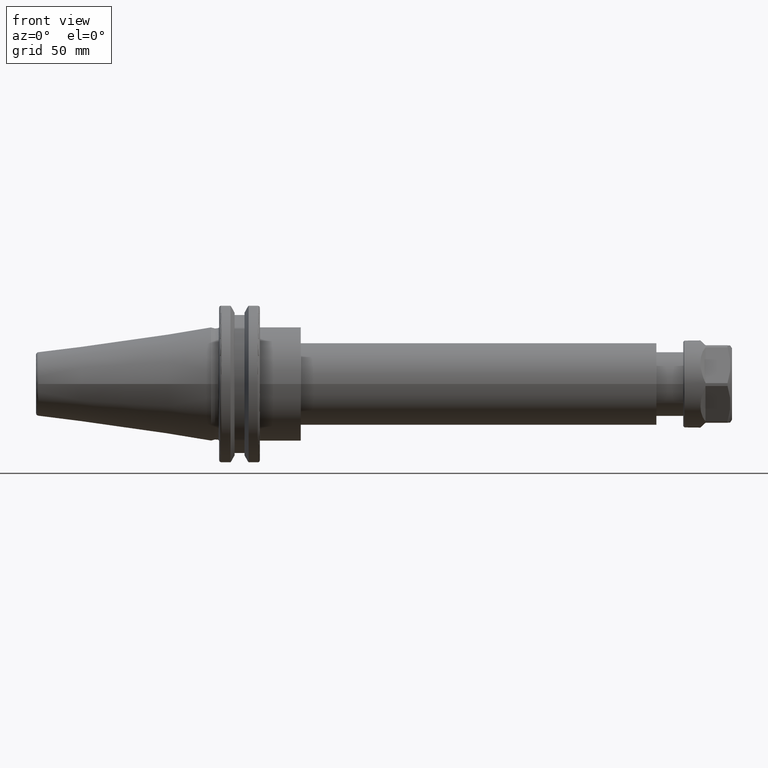
[diagram: clean part render]
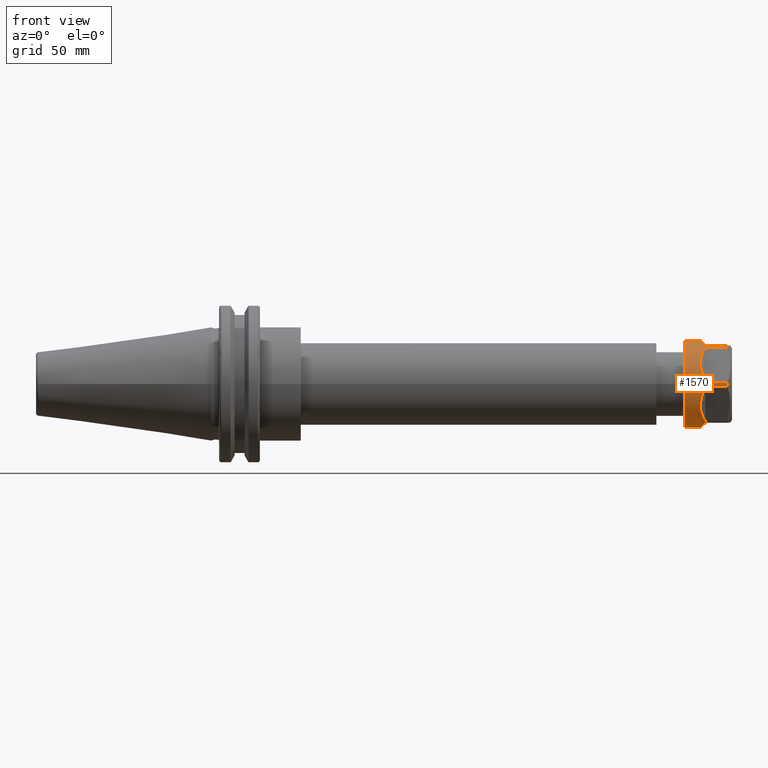
[diagram: same view with one face highlighted and labeled with its STEP entity id]
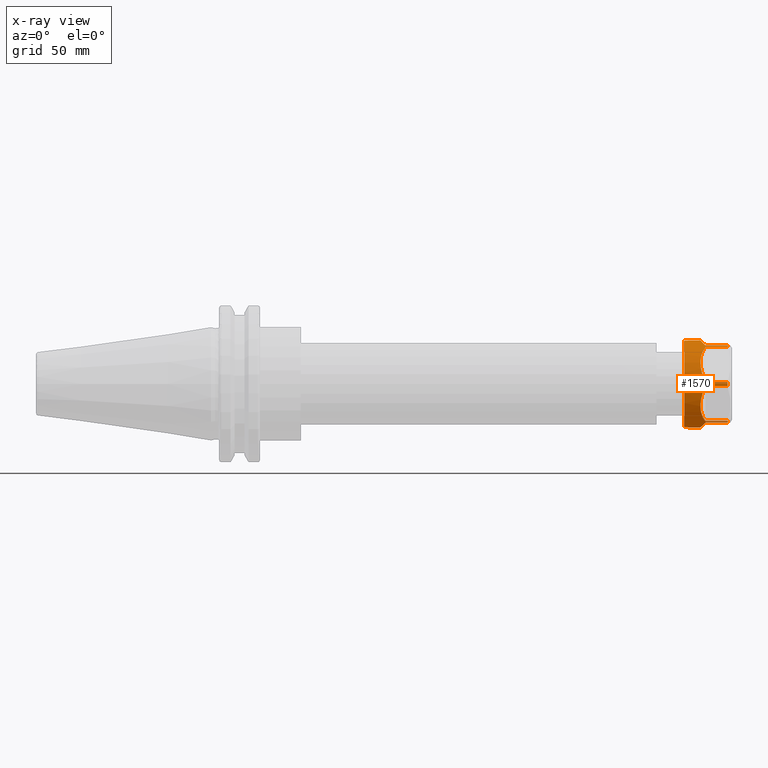
[diagram: x-ray of the same camera — body ghosted, the highlighted face saturated]
A machine part, front view. The second image highlights one B-rep face of the part: STEP entity #1570.
The next image is the same camera in x-ray: the body ghosted, the highlighted face saturated — about 2% of this face is hidden behind the body in this view.
In plain terms, the highlighted cylindrical surface (bore or boss wall) has radius 17 mm, axis along (1, 0, 0).
Its self-contained STEP definition (entity closure, byte-faithful):
#23=ELLIPSE('',#1792,24.0416305603426,17.);
#24=ELLIPSE('',#1794,24.0416305603437,17.);
#25=ELLIPSE('',#1796,24.0416305603437,17.);
#26=ELLIPSE('',#1798,24.0416305603426,17.);
#27=ELLIPSE('',#1799,24.0416305603426,17.);
#28=ELLIPSE('',#1801,24.0416305603437,17.);
#29=ELLIPSE('',#1803,24.0416305603437,17.);
#257=FACE_OUTER_BOUND('',#359,.T.);
#359=EDGE_LOOP('',(#1354,#1355,#1356,#1357,#1358,#1359,#1360,#1361,#1362,
#1363,#1364,#1365,#1366,#1367,#1368,#1369,#1370,#1371,#1372,#1373,#1374,
#1375,#1376,#1377,#1378,#1379,#1380,#1381));
#466=LINE('',#2776,#566);
#467=LINE('',#2780,#567);
#468=LINE('',#2784,#568);
#469=LINE('',#2788,#569);
#470=LINE('',#2792,#570);
#471=LINE('',#2796,#571);
#472=LINE('',#2799,#572);
#473=LINE('',#2803,#573);
#474=LINE('',#2807,#574);
#475=LINE('',#2811,#575);
#476=LINE('',#2815,#576);
#477=LINE('',#2819,#577);
#478=LINE('',#2822,#578);
#566=VECTOR('',#2169,8.567949192431);
#567=VECTOR('',#2172,8.567949192431);
#568=VECTOR('',#2175,8.567949192431);
#569=VECTOR('',#2178,8.567949192431);
#570=VECTOR('',#2181,8.567949192431);
#571=VECTOR('',#2184,8.567949192431);
#572=VECTOR('',#2187,17.);
#573=VECTOR('',#2190,8.567949192431);
#574=VECTOR('',#2193,8.567949192431);
#575=VECTOR('',#2196,8.567949192431);
#576=VECTOR('',#2199,8.567949192431);
#577=VECTOR('',#2202,8.567949192431);
#578=VECTOR('',#2205,8.567949192431);
#645=CIRCLE('',#1790,17.);
#646=CIRCLE('',#1793,17.);
#647=CIRCLE('',#1795,17.);
#648=CIRCLE('',#1797,17.);
#649=CIRCLE('',#1800,17.);
#650=CIRCLE('',#1802,17.);
#651=CIRCLE('',#1804,17.);
#773=VERTEX_POINT('',#2768);
#774=VERTEX_POINT('',#2772);
#775=VERTEX_POINT('',#2773);
#776=VERTEX_POINT('',#2775);
#777=VERTEX_POINT('',#2777);
#778=VERTEX_POINT('',#2779);
#779=VERTEX_POINT('',#2781);
#780=VERTEX_POINT('',#2783);
#781=VERTEX_POINT('',#2785);
#782=VERTEX_POINT('',#2787);
#783=VERTEX_POINT('',#2789);
#784=VERTEX_POINT('',#2791);
#785=VERTEX_POINT('',#2793);
#786=VERTEX_POINT('',#2795);
#787=VERTEX_POINT('',#2797);
#788=VERTEX_POINT('',#2800);
#789=VERTEX_POINT('',#2802);
#790=VERTEX_POINT('',#2804);
#791=VERTEX_POINT('',#2806);
#792=VERTEX_POINT('',#2808);
#793=VERTEX_POINT('',#2810);
#794=VERTEX_POINT('',#2812);
#795=VERTEX_POINT('',#2814);
#796=VERTEX_POINT('',#2816);
#797=VERTEX_POINT('',#2818);
#798=VERTEX_POINT('',#2820);
#973=EDGE_CURVE('',#773,#773,#645,.T.);
#975=EDGE_CURVE('',#774,#775,#23,.T.);
#976=EDGE_CURVE('',#774,#776,#466,.T.);
#977=EDGE_CURVE('',#777,#776,#646,.T.);
#978=EDGE_CURVE('',#778,#777,#467,.T.);
#979=EDGE_CURVE('',#779,#778,#24,.T.);
#980=EDGE_CURVE('',#779,#780,#468,.T.);
#981=EDGE_CURVE('',#781,#780,#647,.T.);
#982=EDGE_CURVE('',#782,#781,#469,.T.);
#983=EDGE_CURVE('',#783,#782,#25,.T.);
#984=EDGE_CURVE('',#783,#784,#470,.T.);
#985=EDGE_CURVE('',#785,#784,#648,.T.);
#986=EDGE_CURVE('',#786,#785,#471,.T.);
#987=EDGE_CURVE('',#787,#786,#26,.T.);
#988=EDGE_CURVE('',#787,#773,#472,.T.);
#989=EDGE_CURVE('',#788,#787,#27,.T.);
#990=EDGE_CURVE('',#788,#789,#473,.T.);
#991=EDGE_CURVE('',#790,#789,#649,.T.);
#992=EDGE_CURVE('',#791,#790,#474,.T.);
#993=EDGE_CURVE('',#792,#791,#28,.T.);
#994=EDGE_CURVE('',#792,#793,#475,.T.);
#995=EDGE_CURVE('',#794,#793,#650,.T.);
#996=EDGE_CURVE('',#795,#794,#476,.T.);
#997=EDGE_CURVE('',#796,#795,#29,.T.);
#998=EDGE_CURVE('',#796,#797,#477,.T.);
#999=EDGE_CURVE('',#798,#797,#651,.T.);
#1000=EDGE_CURVE('',#775,#798,#478,.T.);
#1354=ORIENTED_EDGE('',*,*,#975,.F.);
#1355=ORIENTED_EDGE('',*,*,#976,.T.);
#1356=ORIENTED_EDGE('',*,*,#977,.F.);
#1357=ORIENTED_EDGE('',*,*,#978,.F.);
#1358=ORIENTED_EDGE('',*,*,#979,.F.);
#1359=ORIENTED_EDGE('',*,*,#980,.T.);
#1360=ORIENTED_EDGE('',*,*,#981,.F.);
#1361=ORIENTED_EDGE('',*,*,#982,.F.);
#1362=ORIENTED_EDGE('',*,*,#983,.F.);
#1363=ORIENTED_EDGE('',*,*,#984,.T.);
#1364=ORIENTED_EDGE('',*,*,#985,.F.);
#1365=ORIENTED_EDGE('',*,*,#986,.F.);
#1366=ORIENTED_EDGE('',*,*,#987,.F.);
#1367=ORIENTED_EDGE('',*,*,#988,.T.);
#1368=ORIENTED_EDGE('',*,*,#973,.F.);
#1369=ORIENTED_EDGE('',*,*,#988,.F.);
#1370=ORIENTED_EDGE('',*,*,#989,.F.);
#1371=ORIENTED_EDGE('',*,*,#990,.T.);
#1372=ORIENTED_EDGE('',*,*,#991,.F.);
#1373=ORIENTED_EDGE('',*,*,#992,.F.);
#1374=ORIENTED_EDGE('',*,*,#993,.F.);
#1375=ORIENTED_EDGE('',*,*,#994,.T.);
#1376=ORIENTED_EDGE('',*,*,#995,.F.);
#1377=ORIENTED_EDGE('',*,*,#996,.F.);
#1378=ORIENTED_EDGE('',*,*,#997,.F.);
#1379=ORIENTED_EDGE('',*,*,#998,.T.);
#1380=ORIENTED_EDGE('',*,*,#999,.F.);
#1381=ORIENTED_EDGE('',*,*,#1000,.F.);
#1499=CYLINDRICAL_SURFACE('',#1791,17.);
#1570=ADVANCED_FACE('',(#257),#1499,.T.);
#1790=AXIS2_PLACEMENT_3D('',#2769,#2162,#2163);
#1791=AXIS2_PLACEMENT_3D('',#2771,#2165,#2166);
#1792=AXIS2_PLACEMENT_3D('',#2774,#2167,#2168);
#1793=AXIS2_PLACEMENT_3D('',#2778,#2170,#2171);
#1794=AXIS2_PLACEMENT_3D('',#2782,#2173,#2174);
#1795=AXIS2_PLACEMENT_3D('',#2786,#2176,#2177);
#1796=AXIS2_PLACEMENT_3D('',#2790,#2179,#2180);
#1797=AXIS2_PLACEMENT_3D('',#2794,#2182,#2183);
#1798=AXIS2_PLACEMENT_3D('',#2798,#2185,#2186);
#1799=AXIS2_PLACEMENT_3D('',#2801,#2188,#2189);
#1800=AXIS2_PLACEMENT_3D('',#2805,#2191,#2192);
#1801=AXIS2_PLACEMENT_3D('',#2809,#2194,#2195);
#1802=AXIS2_PLACEMENT_3D('',#2813,#2197,#2198);
#1803=AXIS2_PLACEMENT_3D('',#2817,#2200,#2201);
#1804=AXIS2_PLACEMENT_3D('',#2821,#2203,#2204);
#2162=DIRECTION('center_axis',(-1.,0.,0.));
#2163=DIRECTION('ref_axis',(0.,0.,-1.));
#2165=DIRECTION('center_axis',(1.,0.,0.));
#2166=DIRECTION('ref_axis',(0.,0.,-1.));
#2167=DIRECTION('center_axis',(0.707106781186548,0.,-0.707106781186548));
#2168=DIRECTION('ref_axis',(-0.707106781186548,0.,-0.707106781186547));
#2169=DIRECTION('',(1.,0.,0.));
#2170=DIRECTION('center_axis',(1.,0.,0.));
#2171=DIRECTION('ref_axis',(0.,-0.528845944515708,-0.848717837075013));
#2172=DIRECTION('',(1.,0.,0.));
#2173=DIRECTION('center_axis',(0.707106781186515,-0.612372435695813,-0.353553390593307));
#2174=DIRECTION('ref_axis',(-0.70710678118658,-0.612372435695756,-0.353553390593275));
#2175=DIRECTION('',(1.,0.,0.));
#2176=DIRECTION('center_axis',(1.,0.,0.));
#2177=DIRECTION('ref_axis',(0.,-0.999434179809799,0.03363510410144));
#2178=DIRECTION('',(1.,0.,0.));
#2179=DIRECTION('center_axis',(0.707106781186515,-0.612372435695813,0.353553390593307));
#2180=DIRECTION('ref_axis',(0.70710678118658,0.612372435695756,-0.353553390593275));
#2181=DIRECTION('',(1.,0.,0.));
#2182=DIRECTION('center_axis',(1.,0.,0.));
#2183=DIRECTION('ref_axis',(0.,-0.470588235294092,0.882352941176485));
#2184=DIRECTION('',(1.,0.,0.));
#2185=DIRECTION('center_axis',(0.707106781186548,0.,0.707106781186548));
#2186=DIRECTION('ref_axis',(0.707106781186548,0.,-0.707106781186547));
#2187=DIRECTION('',(-1.,0.,0.));
#2188=DIRECTION('center_axis',(0.707106781186548,0.,0.707106781186548));
#2189=DIRECTION('ref_axis',(0.707106781186548,0.,-0.707106781186547));
#2190=DIRECTION('',(1.,0.,0.));
#2191=DIRECTION('center_axis',(1.,0.,0.));
#2192=DIRECTION('ref_axis',(0.,0.528845944515708,0.848717837075013));
#2193=DIRECTION('',(1.,0.,0.));
#2194=DIRECTION('center_axis',(0.707106781186515,0.612372435695813,0.353553390593307));
#2195=DIRECTION('ref_axis',(0.70710678118658,-0.612372435695756,-0.353553390593275));
#2196=DIRECTION('',(1.,0.,0.));
#2197=DIRECTION('center_axis',(1.,0.,0.));
#2198=DIRECTION('ref_axis',(0.,0.999434179809799,-0.03363510410144));
#2199=DIRECTION('',(1.,0.,0.));
#2200=DIRECTION('center_axis',(0.707106781186515,0.612372435695813,-0.353553390593307));
#2201=DIRECTION('ref_axis',(-0.70710678118658,0.612372435695756,-0.353553390593275));
#2202=DIRECTION('',(1.,0.,0.));
#2203=DIRECTION('center_axis',(1.,0.,0.));
#2204=DIRECTION('ref_axis',(0.,0.470588235294092,-0.882352941176485));
#2205=DIRECTION('',(1.,0.,0.));
#2768=CARTESIAN_POINT('',(-9.,0.,17.));
#2769=CARTESIAN_POINT('Origin',(-9.,0.,0.));
#2771=CARTESIAN_POINT('Origin',(-9.5,0.,0.));
#2772=CARTESIAN_POINT('',(-0.8,-8.,-15.));
#2773=CARTESIAN_POINT('',(-0.8,8.,-15.));
#2774=CARTESIAN_POINT('Origin',(14.2,0.,0.));
#2775=CARTESIAN_POINT('',(7.767949192431,-8.,-15.));
#2776=CARTESIAN_POINT('',(-0.8,-8.,-15.));
#2777=CARTESIAN_POINT('',(7.767949192431,-8.990381056767,-14.42820323028));
#2778=CARTESIAN_POINT('Origin',(7.767949192431,0.,0.));
#2779=CARTESIAN_POINT('',(-0.8,-8.990381056767,-14.42820323028));
#2780=CARTESIAN_POINT('',(-0.8,-8.990381056767,-14.42820323028));
#2781=CARTESIAN_POINT('',(-0.8,-16.99038105677,-0.5717967697245));
#2782=CARTESIAN_POINT('Origin',(14.1999999999998,0.,0.));
#2783=CARTESIAN_POINT('',(7.767949192431,-16.99038105677,-0.5717967697245));
#2784=CARTESIAN_POINT('',(-0.8,-16.99038105677,-0.5717967697245));
#2785=CARTESIAN_POINT('',(7.767949192431,-16.99038105677,0.5717967697245));
#2786=CARTESIAN_POINT('Origin',(7.767949192431,0.,0.));
#2787=CARTESIAN_POINT('',(-0.8,-16.99038105677,0.5717967697245));
#2788=CARTESIAN_POINT('',(-0.8,-16.99038105677,0.5717967697245));
#2789=CARTESIAN_POINT('',(-0.8,-8.990381056767,14.42820323028));
#2790=CARTESIAN_POINT('Origin',(14.2000000000043,0.,0.));
#2791=CARTESIAN_POINT('',(7.767949192431,-8.990381056767,14.42820323028));
#2792=CARTESIAN_POINT('',(-0.8,-8.990381056767,14.42820323028));
#2793=CARTESIAN_POINT('',(7.767949192431,-8.,15.));
#2794=CARTESIAN_POINT('Origin',(7.767949192431,0.,0.));
#2795=CARTESIAN_POINT('',(-0.8,-8.,15.));
#2796=CARTESIAN_POINT('',(-0.8,-8.,15.));
#2797=CARTESIAN_POINT('',(-2.80000000000001,-2.0818995585505E-15,17.));
#2798=CARTESIAN_POINT('Origin',(14.2,0.,0.));
#2799=CARTESIAN_POINT('',(-9.5,-2.0818995585505E-15,17.));
#2800=CARTESIAN_POINT('',(-0.8,8.,15.));
#2801=CARTESIAN_POINT('Origin',(14.2,0.,0.));
#2802=CARTESIAN_POINT('',(7.767949192431,8.,15.));
#2803=CARTESIAN_POINT('',(-0.8,8.,15.));
#2804=CARTESIAN_POINT('',(7.767949192431,8.990381056767,14.42820323028));
#2805=CARTESIAN_POINT('Origin',(7.767949192431,0.,0.));
#2806=CARTESIAN_POINT('',(-0.8,8.990381056767,14.42820323028));
#2807=CARTESIAN_POINT('',(-0.8,8.990381056767,14.42820323028));
#2808=CARTESIAN_POINT('',(-0.8,16.99038105677,0.5717967697245));
#2809=CARTESIAN_POINT('Origin',(14.1999999999998,0.,0.));
#2810=CARTESIAN_POINT('',(7.767949192431,16.99038105677,0.5717967697245));
#2811=CARTESIAN_POINT('',(-0.8,16.99038105677,0.5717967697245));
#2812=CARTESIAN_POINT('',(7.767949192431,16.99038105677,-0.5717967697245));
#2813=CARTESIAN_POINT('Origin',(7.767949192431,0.,0.));
#2814=CARTESIAN_POINT('',(-0.8,16.99038105677,-0.5717967697245));
#2815=CARTESIAN_POINT('',(-0.8,16.99038105677,-0.5717967697245));
#2816=CARTESIAN_POINT('',(-0.8,8.990381056767,-14.42820323028));
#2817=CARTESIAN_POINT('Origin',(14.2000000000043,0.,0.));
#2818=CARTESIAN_POINT('',(7.767949192431,8.990381056767,-14.42820323028));
#2819=CARTESIAN_POINT('',(-0.8,8.990381056767,-14.42820323028));
#2820=CARTESIAN_POINT('',(7.767949192431,8.,-15.));
#2821=CARTESIAN_POINT('Origin',(7.767949192431,0.,0.));
#2822=CARTESIAN_POINT('',(-0.8,8.,-15.));